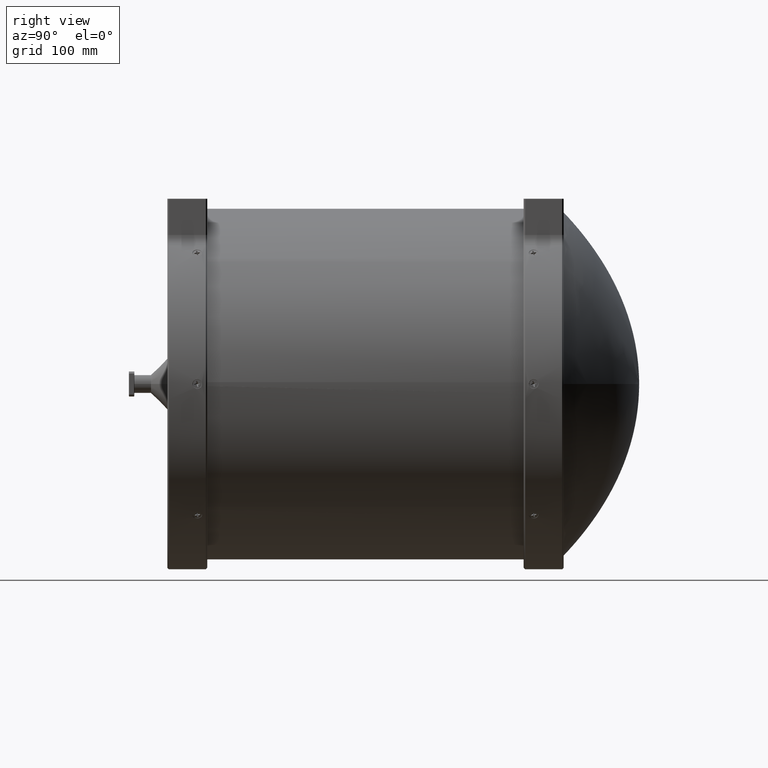
[diagram: clean part render]
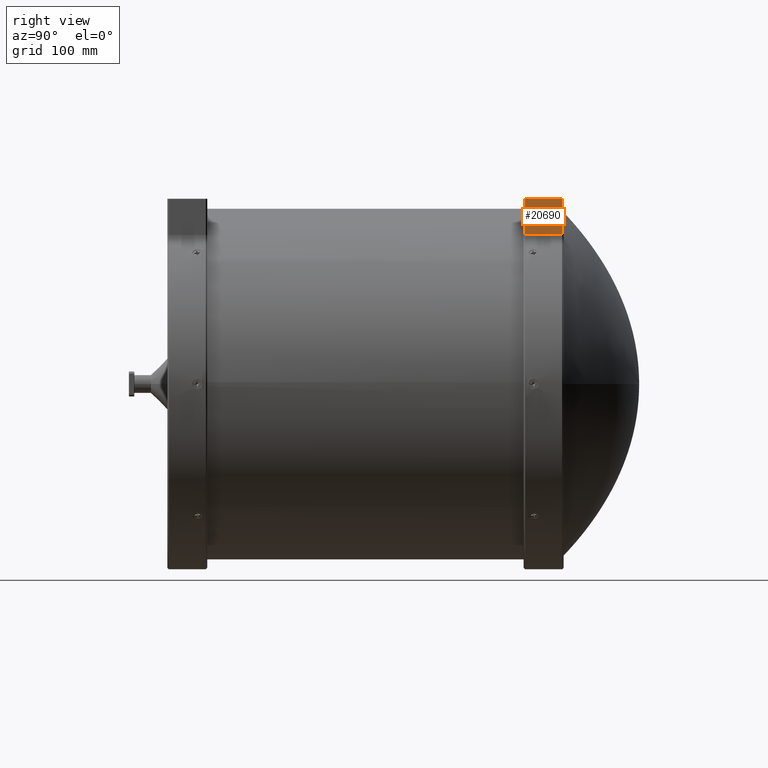
[diagram: same view with one face highlighted and labeled with its STEP entity id]
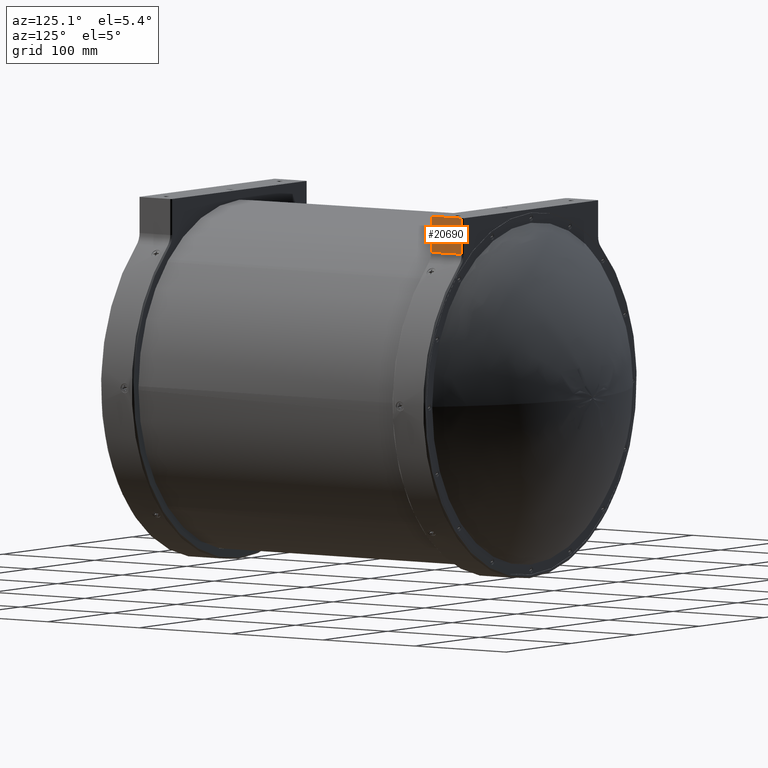
[diagram: same view with one face highlighted and labeled with its STEP entity id]
A machine part, right view. The second image highlights one B-rep face of the part: STEP entity #20690.
A second angle (auxiliary view) of the same face is appended — the face is thin or edge-on in the first view.
In plain terms, the highlighted planar face has unit normal (1, -0, 0).
Its self-contained STEP definition (entity closure, byte-faithful):
#465 = EDGE_CURVE ( 'NONE', #6096, #40289, #38867, .T. ) ;
#3298 = CARTESIAN_POINT ( 'NONE',  ( 105.4099999999999966, 140.9699999999999704, 0.000000000000000000 ) ) ;
#4237 = ORIENTED_EDGE ( 'NONE', *, *, #34594, .T. ) ;
#6096 = VERTEX_POINT ( 'NONE', #32484 ) ;
#7111 = DIRECTION ( 'NONE',  ( 0.000000000000000000, 0.000000000000000000, -1.000000000000000000 ) ) ;
#7151 = CARTESIAN_POINT ( 'NONE',  ( 105.4099999999999966, 139.7000000000000171, 0.000000000000000000 ) ) ;
#7916 = CARTESIAN_POINT ( 'NONE',  ( 105.4099999999999966, 139.7000000000000171, 165.0999999999999659 ) ) ;
#12418 = ORIENTED_EDGE ( 'NONE', *, *, #38461, .T. ) ;
#13202 = EDGE_LOOP ( 'NONE', ( #34846, #12418, #4237, #16291 ) ) ;
#14712 = AXIS2_PLACEMENT_3D ( 'NONE', #7151, #34332, #31032 ) ;
#14796 = PLANE ( 'NONE',  #14712 ) ;
#15880 = VECTOR ( 'NONE', #43156, 1000.000000000000000 ) ;
#16291 = ORIENTED_EDGE ( 'NONE', *, *, #27734, .T. ) ;
#17148 = CARTESIAN_POINT ( 'NONE',  ( 105.4099999999999966, 140.9699999999999704, 132.9017227126871887 ) ) ;
#18892 = LINE ( 'NONE', #34381, #15880 ) ;
#18971 = LINE ( 'NONE', #22278, #34738 ) ;
#20690 = ADVANCED_FACE ( 'NONE', ( #49526 ), #14796, .T. ) ;
#22113 = LINE ( 'NONE', #3298, #45284 ) ;
#22278 = CARTESIAN_POINT ( 'NONE',  ( 105.4099999999999966, 173.9900000000000944, 0.000000000000000000 ) ) ;
#27466 = DIRECTION ( 'NONE',  ( 0.000000000000000000, 1.000000000000000000, 0.000000000000000000 ) ) ;
#27734 = EDGE_CURVE ( 'NONE', #28227, #40289, #18971, .T. ) ;
#28227 = VERTEX_POINT ( 'NONE', #33528 ) ;
#31032 = DIRECTION ( 'NONE',  ( 0.000000000000000000, 0.000000000000000000, -1.000000000000000000 ) ) ;
#32484 = CARTESIAN_POINT ( 'NONE',  ( 105.4099999999999966, 140.9699999999999704, 165.0999999999999659 ) ) ;
#33528 = CARTESIAN_POINT ( 'NONE',  ( 105.4099999999999966, 173.9900000000000944, 132.9017227126871887 ) ) ;
#34332 = DIRECTION ( 'NONE',  ( 1.000000000000000000, -0.000000000000000000, 0.000000000000000000 ) ) ;
#34381 = CARTESIAN_POINT ( 'NONE',  ( 105.4099999999999966, 139.7000000000000171, 132.9017227126871887 ) ) ;
#34594 = EDGE_CURVE ( 'NONE', #41672, #28227, #18892, .T. ) ;
#34738 = VECTOR ( 'NONE', #37762, 1000.000000000000000 ) ;
#34846 = ORIENTED_EDGE ( 'NONE', *, *, #465, .F. ) ;
#37762 = DIRECTION ( 'NONE',  ( 0.000000000000000000, 0.000000000000000000, 1.000000000000000000 ) ) ;
#38461 = EDGE_CURVE ( 'NONE', #6096, #41672, #22113, .T. ) ;
#38867 = LINE ( 'NONE', #7916, #42871 ) ;
#40289 = VERTEX_POINT ( 'NONE', #48567 ) ;
#41672 = VERTEX_POINT ( 'NONE', #17148 ) ;
#42871 = VECTOR ( 'NONE', #27466, 1000.000000000000000 ) ;
#43156 = DIRECTION ( 'NONE',  ( -0.000000000000000000, 1.000000000000000000, -0.000000000000000000 ) ) ;
#45284 = VECTOR ( 'NONE', #7111, 1000.000000000000000 ) ;
#48567 = CARTESIAN_POINT ( 'NONE',  ( 105.4099999999999966, 173.9900000000000944, 165.0999999999999659 ) ) ;
#49526 = FACE_OUTER_BOUND ( 'NONE', #13202, .T. ) ;